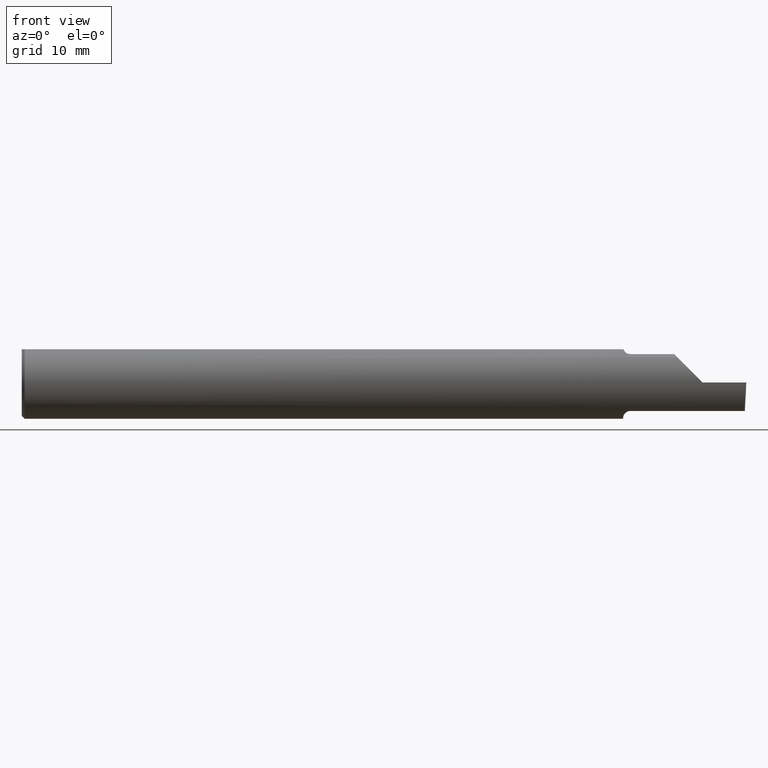
[diagram: clean part render]
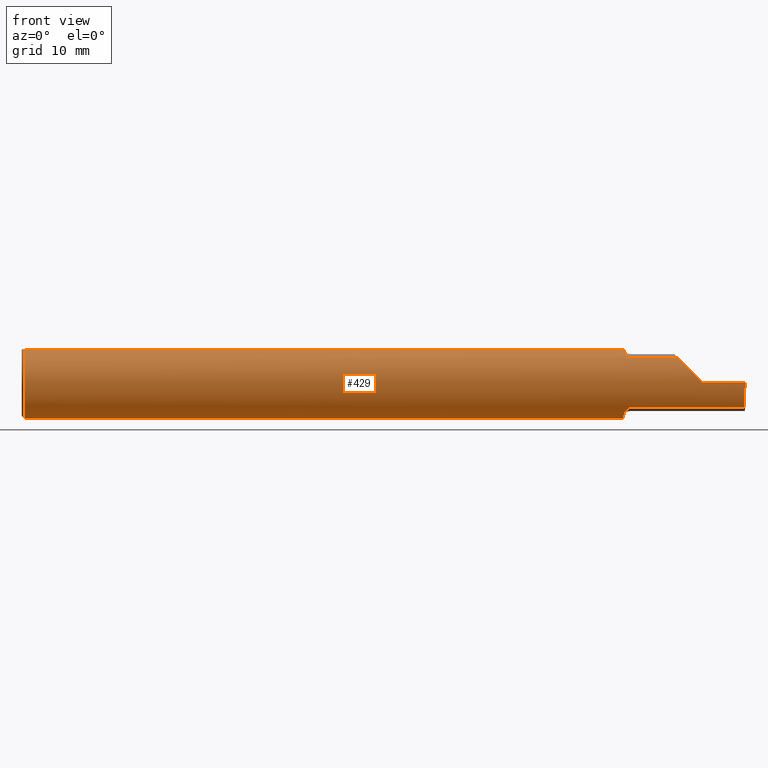
[diagram: same view with one face highlighted and labeled with its STEP entity id]
A machine part, front view. The second image highlights one B-rep face of the part: STEP entity #429.
In plain terms, the highlighted cylindrical surface (edge-blend (fillet) strip) has radius 3.175 mm, axis along (-1, -0, -0).
Its self-contained STEP definition (entity closure, byte-faithful):
#7 = CARTESIAN_POINT ( 'NONE',  ( 0.01000000000000042348, 0.000000000000000000, -0.1250000000000000000 ) ) ;
#15 = EDGE_CURVE ( 'NONE', #87, #37, #658, .T. ) ;
#22 = EDGE_CURVE ( 'NONE', #37, #180, #174, .T. ) ;
#32 = CARTESIAN_POINT ( 'NONE',  ( 2.091446811421532104, -0.08721672169474524450, 0.08955973280246720680 ) ) ;
#37 = VERTEX_POINT ( 'NONE', #100 ) ;
#39 = CARTESIAN_POINT ( 'NONE',  ( 2.085996102358147475, -0.08116363444194581167, 0.09515685373905029276 ) ) ;
#43 = ORIENTED_EDGE ( 'NONE', *, *, #605, .F. ) ;
#45 = DIRECTION ( 'NONE',  ( 1.000000000000000000, 0.000000000000000000, 0.000000000000000000 ) ) ;
#60 = EDGE_CURVE ( 'NONE', #75, #217, #78, .T. ) ;
#68 = VECTOR ( 'NONE', #306, 39.37007874015748143 ) ;
#75 = VERTEX_POINT ( 'NONE', #473 ) ;
#78 = CIRCLE ( 'NONE', #402, 0.1250000000000000000 ) ;
#87 = VERTEX_POINT ( 'NONE', #141 ) ;
#88 = CARTESIAN_POINT ( 'NONE',  ( 2.080932841370987774, -0.07048791403321993942, -0.1034389270157552027 ) ) ;
#89 = CARTESIAN_POINT ( 'NONE',  ( 2.084055883886138272, -0.07758562614434452720, 0.09811804109501713611 ) ) ;
#100 = CARTESIAN_POINT ( 'NONE',  ( 2.350000000000000089, -0.1250000000000000278, 1.836970198721028825E-17 ) ) ;
#108 = EDGE_CURVE ( 'NONE', #560, #472, #485, .T. ) ;
#109 = ORIENTED_EDGE ( 'NONE', *, *, #128, .T. ) ;
#128 = EDGE_CURVE ( 'NONE', #696, #87, #660, .T. ) ;
#137 = CARTESIAN_POINT ( 'NONE',  ( 2.098259114367880596, -0.09042045454545440120, -0.08630840862739518060 ) ) ;
#141 = CARTESIAN_POINT ( 'NONE',  ( 2.495842809704562626, -0.1250000000000000000, 0.000000000000000000 ) ) ;
#143 = CARTESIAN_POINT ( 'NONE',  ( 2.077426556614085928, -0.05801934803182533240, 0.1111534264545090966 ) ) ;
#148 = CARTESIAN_POINT ( 'NONE',  ( 2.493431982762754462, -0.09042045454545434569, -0.08630840862739522223 ) ) ;
#155 = DIRECTION ( 'NONE',  ( 1.000000000000000000, -1.257036449194457259E-16, 0.000000000000000000 ) ) ;
#158 = CARTESIAN_POINT ( 'NONE',  ( 2.076278290187167919, -0.04898979485481608914, 0.1149999999999999217 ) ) ;
#168 = VERTEX_POINT ( 'NONE', #700 ) ;
#174 =( BOUNDED_CURVE ( )  B_SPLINE_CURVE ( 3, ( #178, #295, #516, #571 ),
 .UNSPECIFIED., .F., .T. ) 
 B_SPLINE_CURVE_WITH_KNOTS ( ( 4, 4 ),
 ( 4.712388980384689674, 5.474523801125204869 ),
 .UNSPECIFIED. ) 
 CURVE ( )  GEOMETRIC_REPRESENTATION_ITEM ( )  RATIONAL_B_SPLINE_CURVE ( ( 1.000000000000000000, 0.9521787881681385013, 0.9521787881681385013, 1.000000000000000000 ) ) 
 REPRESENTATION_ITEM ( '' )  );
#178 = CARTESIAN_POINT ( 'NONE',  ( 2.350000000000000089, -0.1250000000000000278, 1.836970198721028825E-17 ) ) ;
#179 = CARTESIAN_POINT ( 'NONE',  ( 0.01000000000000042348, 0.000000000000000000, 0.000000000000000000 ) ) ;
#180 = VERTEX_POINT ( 'NONE', #389 ) ;
#181 = CIRCLE ( 'NONE', #237, 0.1250000000000000000 ) ;
#184 = EDGE_CURVE ( 'NONE', #472, #168, #181, .T. ) ;
#185 = LINE ( 'NONE', #458, #68 ) ;
#188 = EDGE_CURVE ( 'NONE', #650, #180, #226, .T. ) ;
#189 = CARTESIAN_POINT ( 'NONE',  ( 0.01000000000000042348, 0.000000000000000000, 0.000000000000000000 ) ) ;
#190 = DIRECTION ( 'NONE',  ( -1.000000000000000000, -0.000000000000000000, -0.000000000000000000 ) ) ;
#191 = LINE ( 'NONE', #407, #408 ) ;
#192 = CARTESIAN_POINT ( 'NONE',  ( 2.096593478233292007, -0.08999923832592932049, -0.08675238105120941512 ) ) ;
#194 = CARTESIAN_POINT ( 'NONE',  ( 2.075000000000000178, -0.02763636363636362211, -0.1219066503721543265 ) ) ;
#202 = CARTESIAN_POINT ( 'NONE',  ( 2.493862026000344123, -0.1128945894460738480, -0.06276352435079120273 ) ) ;
#208 = VERTEX_POINT ( 'NONE', #158 ) ;
#217 = VERTEX_POINT ( 'NONE', #7 ) ;
#221 = ORIENTED_EDGE ( 'NONE', *, *, #15, .T. ) ;
#226 = LINE ( 'NONE', #493, #305 ) ;
#237 = AXIS2_PLACEMENT_3D ( 'NONE', #271, #447, #591 ) ;
#245 = CARTESIAN_POINT ( 'NONE',  ( 2.089945076695470583, -0.08578123596776227044, 0.09094459933486044589 ) ) ;
#267 = LINE ( 'NONE', #381, #614 ) ;
#271 = CARTESIAN_POINT ( 'NONE',  ( 2.075000000000000178, 0.000000000000000000, 0.000000000000000000 ) ) ;
#272 = EDGE_LOOP ( 'NONE', ( #654, #109, #221, #647, #628, #425, #446, #599, #322, #43, #336, #546 ) ) ;
#295 = CARTESIAN_POINT ( 'NONE',  ( 2.317450832343515899, -0.1250000000000000278, 0.03254916765648410010 ) ) ;
#298 = CARTESIAN_POINT ( 'NONE',  ( 2.100000000000000089, -0.09042045454545434569, -0.08630840862739518060 ) ) ;
#302 = CARTESIAN_POINT ( 'NONE',  ( 2.075000000000000178, -0.02763636363636362211, -0.1219066503721543265 ) ) ;
#305 = VECTOR ( 'NONE', #155, 39.37007874015748143 ) ;
#306 = DIRECTION ( 'NONE',  ( 1.000000000000000000, 0.000000000000000000, 0.000000000000000000 ) ) ;
#317 = CARTESIAN_POINT ( 'NONE',  ( 2.495842809704562626, -0.1250000000000000000, 0.000000000000000000 ) ) ;
#322 = ORIENTED_EDGE ( 'NONE', *, *, #685, .T. ) ;
#336 = ORIENTED_EDGE ( 'NONE', *, *, #184, .F. ) ;
#342 = VERTEX_POINT ( 'NONE', #589 ) ;
#356 = CARTESIAN_POINT ( 'NONE',  ( 2.093701570004388390, -0.08871861273376824286, -0.08806160498138394799 ) ) ;
#359 = CARTESIAN_POINT ( 'NONE',  ( 2.075000000000000622, -0.04088126997068480123, -0.1189040164168497365 ) ) ;
#366 = CARTESIAN_POINT ( 'NONE',  ( 2.494705994581233099, -0.1250000000000000278, -0.03254916765648423888 ) ) ;
#381 = CARTESIAN_POINT ( 'NONE',  ( 0.000000000000000000, 0.04898979485566374442, 0.1149999999999999217 ) ) ;
#389 = CARTESIAN_POINT ( 'NONE',  ( 2.263691591372603895, -0.09042045454545456773, 0.08630840862739504182 ) ) ;
#390 = CARTESIAN_POINT ( 'NONE',  ( 2.493431982762754462, -0.09042045454545434569, -0.08630840862739522223 ) ) ;
#394 = DIRECTION ( 'NONE',  ( 1.000000000000000000, 0.000000000000000000, 0.000000000000000000 ) ) ;
#402 = AXIS2_PLACEMENT_3D ( 'NONE', #189, #45, #688 ) ;
#407 = CARTESIAN_POINT ( 'NONE',  ( 2.291241705000000017, -0.09042045454545430405, -0.08630840862739522223 ) ) ;
#408 = VECTOR ( 'NONE', #682, 39.37007874015748143 ) ;
#415 = CARTESIAN_POINT ( 'NONE',  ( 2.089104893754834436, -0.08507551663519488661, -0.09161800969921145288 ) ) ;
#417 = EDGE_CURVE ( 'NONE', #208, #650, #570, .T. ) ;
#423 = DIRECTION ( 'NONE',  ( -1.000000000000000000, -0.000000000000000000, -0.000000000000000000 ) ) ;
#425 = ORIENTED_EDGE ( 'NONE', *, *, #417, .F. ) ;
#429 = ADVANCED_FACE ( 'NONE', ( #630 ), #689, .T. ) ;
#446 = ORIENTED_EDGE ( 'NONE', *, *, #562, .F. ) ;
#447 = DIRECTION ( 'NONE',  ( 1.000000000000000000, -1.257036449194457259E-16, 0.000000000000000000 ) ) ;
#458 = CARTESIAN_POINT ( 'NONE',  ( 0.000000000000000000, -0.04898979485566374442, 0.1149999999999999217 ) ) ;
#462 = CARTESIAN_POINT ( 'NONE',  ( 0.000000000000000000, 0.000000000000000000, 0.000000000000000000 ) ) ;
#467 = DIRECTION ( 'NONE',  ( 0.000000000000000000, 0.000000000000000000, 1.000000000000000000 ) ) ;
#470 = CARTESIAN_POINT ( 'NONE',  ( 2.076267035147732365, -0.05364148398375697541, -0.1136671534952895524 ) ) ;
#472 = VERTEX_POINT ( 'NONE', #194 ) ;
#473 = CARTESIAN_POINT ( 'NONE',  ( 0.01000000000000042348, -0.04898979485566374442, 0.1149999999999999217 ) ) ;
#483 = CARTESIAN_POINT ( 'NONE',  ( 2.100000000000000089, -0.09042045454545430405, 0.08630840862739518060 ) ) ;
#485 = B_SPLINE_CURVE_WITH_KNOTS ( 'NONE', 3,
 ( #638, #137, #192, #356, #576, #415, #588, #582, #88, #470, #359, #302 ),
 .UNSPECIFIED., .F., .F.,
 ( 4, 2, 2, 2, 2, 4 ),
 ( 1.964009442425878487E-07, 0.0001304774066965717287, 0.0002607584124489008650, 0.0005213204239535720397, 0.001042444446962914172, 0.002084692492981598654 ),
 .UNSPECIFIED. ) ;
#490 = CIRCLE ( 'NONE', #581, 0.1250000000000000000 ) ;
#493 = CARTESIAN_POINT ( 'NONE',  ( 2.291241705000000017, -0.09042045454545430405, 0.08630840862739522223 ) ) ;
#502 = EDGE_CURVE ( 'NONE', #696, #560, #191, .T. ) ;
#507 = DIRECTION ( 'NONE',  ( -1.000000000000000000, -0.000000000000000000, -0.000000000000000000 ) ) ;
#516 = CARTESIAN_POINT ( 'NONE',  ( 2.287236475649208511, -0.1128945894460739036, 0.06276352435079098069 ) ) ;
#522 = CARTESIAN_POINT ( 'NONE',  ( 2.076278290187167919, -0.04898979485481608914, 0.1149999999999999217 ) ) ;
#528 = CARTESIAN_POINT ( 'NONE',  ( 2.097488493957806455, -0.09042045454585199982, 0.08630840862697866656 ) ) ;
#535 = CARTESIAN_POINT ( 'NONE',  ( 2.079267307214414107, -0.06631395538220920260, 0.1063681193389261759 ) ) ;
#539 = CARTESIAN_POINT ( 'NONE',  ( 2.095169762358874088, -0.08954173371311455187, 0.08723520050116040370 ) ) ;
#546 = ORIENTED_EDGE ( 'NONE', *, *, #108, .F. ) ;
#556 = CARTESIAN_POINT ( 'NONE',  ( 3.749399456654637998E-32, -0.1249999999999999861, 3.061616997868380183E-16 ) ) ;
#560 = VERTEX_POINT ( 'NONE', #298 ) ;
#562 = EDGE_CURVE ( 'NONE', #75, #208, #185, .T. ) ;
#570 = B_SPLINE_CURVE_WITH_KNOTS ( 'NONE', 3,
 ( #522, #143, #535, #89, #39, #245, #32, #539, #528, #635 ),
 .UNSPECIFIED., .F., .F.,
 ( 4, 2, 2, 2, 4 ),
 ( 5.067393805580387234E-07, 0.0007430328995834497479, 0.001114295979684896314, 0.001299927519735619109, 0.001485559059786342121 ),
 .UNSPECIFIED. ) ;
#571 = CARTESIAN_POINT ( 'NONE',  ( 2.263691591372603895, -0.09042045454545456773, 0.08630840862739504182 ) ) ;
#576 = CARTESIAN_POINT ( 'NONE',  ( 2.092439721641150552, -0.08786602687380744292, -0.08891702384475581866 ) ) ;
#581 = AXIS2_PLACEMENT_3D ( 'NONE', #179, #394, #610 ) ;
#582 = CARTESIAN_POINT ( 'NONE',  ( 2.082957287629478849, -0.07583111505166779953, -0.09955951024620253442 ) ) ;
#588 = CARTESIAN_POINT ( 'NONE',  ( 2.087379706860117867, -0.08285324498731286291, -0.09364669410973920638 ) ) ;
#589 = CARTESIAN_POINT ( 'NONE',  ( 0.01000000000000042348, 0.04898979485566374442, 0.1149999999999999217 ) ) ;
#591 = DIRECTION ( 'NONE',  ( 0.000000000000000000, 1.000000000000000000, 0.000000000000000000 ) ) ;
#592 = AXIS2_PLACEMENT_3D ( 'NONE', #462, #190, #467 ) ;
#599 = ORIENTED_EDGE ( 'NONE', *, *, #60, .T. ) ;
#605 = EDGE_CURVE ( 'NONE', #168, #342, #267, .T. ) ;
#610 = DIRECTION ( 'NONE',  ( 0.000000000000000000, 0.000000000000000000, -1.000000000000000000 ) ) ;
#614 = VECTOR ( 'NONE', #423, 39.37007874015748143 ) ;
#628 = ORIENTED_EDGE ( 'NONE', *, *, #188, .F. ) ;
#630 = FACE_OUTER_BOUND ( 'NONE', #272, .T. ) ;
#635 = CARTESIAN_POINT ( 'NONE',  ( 2.100000000000000089, -0.09042045454545430405, 0.08630840862739518060 ) ) ;
#638 = CARTESIAN_POINT ( 'NONE',  ( 2.100000000000000089, -0.09042045454545434569, -0.08630840862739518060 ) ) ;
#646 = VECTOR ( 'NONE', #507, 39.37007874015748143 ) ;
#647 = ORIENTED_EDGE ( 'NONE', *, *, #22, .T. ) ;
#650 = VERTEX_POINT ( 'NONE', #483 ) ;
#654 = ORIENTED_EDGE ( 'NONE', *, *, #502, .F. ) ;
#658 = LINE ( 'NONE', #556, #646 ) ;
#660 =( BOUNDED_CURVE ( )  B_SPLINE_CURVE ( 3, ( #148, #202, #366, #317 ),
 .UNSPECIFIED., .F., .T. ) 
 B_SPLINE_CURVE_WITH_KNOTS ( ( 4, 4 ),
 ( 0.3451966888490705099, 1.107331509589587926 ),
 .UNSPECIFIED. ) 
 CURVE ( )  GEOMETRIC_REPRESENTATION_ITEM ( )  RATIONAL_B_SPLINE_CURVE ( ( 1.000000000000000000, 0.9521787881681382792, 0.9521787881681382792, 1.000000000000000000 ) ) 
 REPRESENTATION_ITEM ( '' )  );
#682 = DIRECTION ( 'NONE',  ( -1.000000000000000000, 1.257036449194457259E-16, -0.000000000000000000 ) ) ;
#685 = EDGE_CURVE ( 'NONE', #217, #342, #490, .T. ) ;
#688 = DIRECTION ( 'NONE',  ( 0.000000000000000000, 0.000000000000000000, -1.000000000000000000 ) ) ;
#689 = CYLINDRICAL_SURFACE ( 'NONE', #592, 0.1250000000000000000 ) ;
#696 = VERTEX_POINT ( 'NONE', #390 ) ;
#700 = CARTESIAN_POINT ( 'NONE',  ( 2.075000000000000178, 0.04898979485566374442, 0.1149999999999999217 ) ) ;